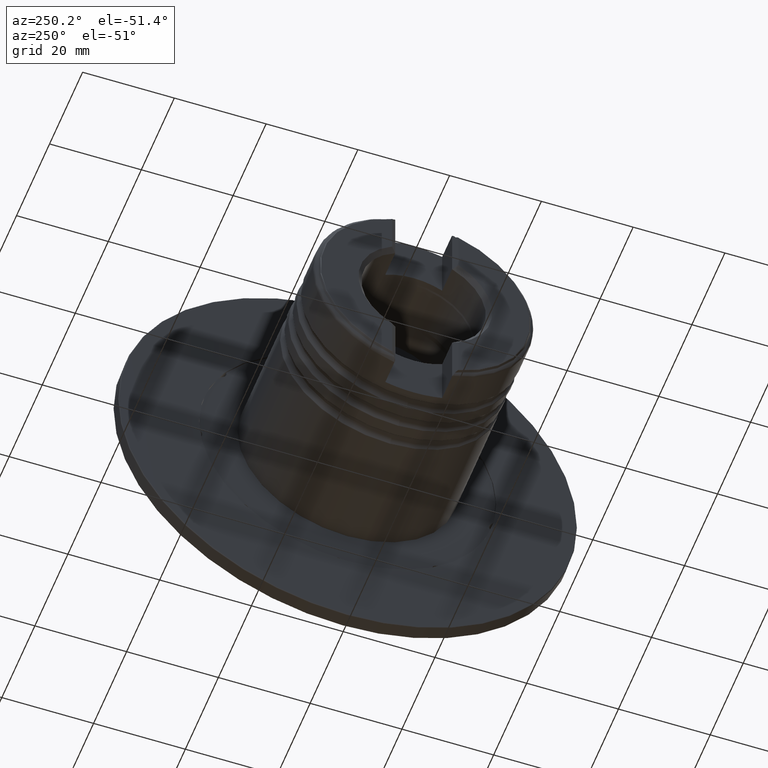
[diagram: clean part render]
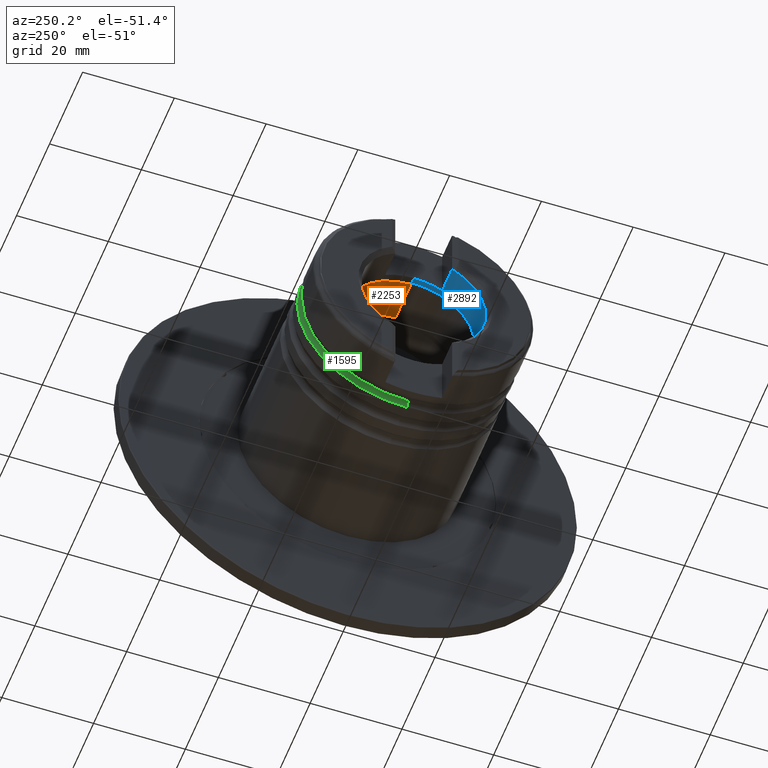
[diagram: same view with three faces highlighted in distinct colors, each labeled with its STEP entity id]
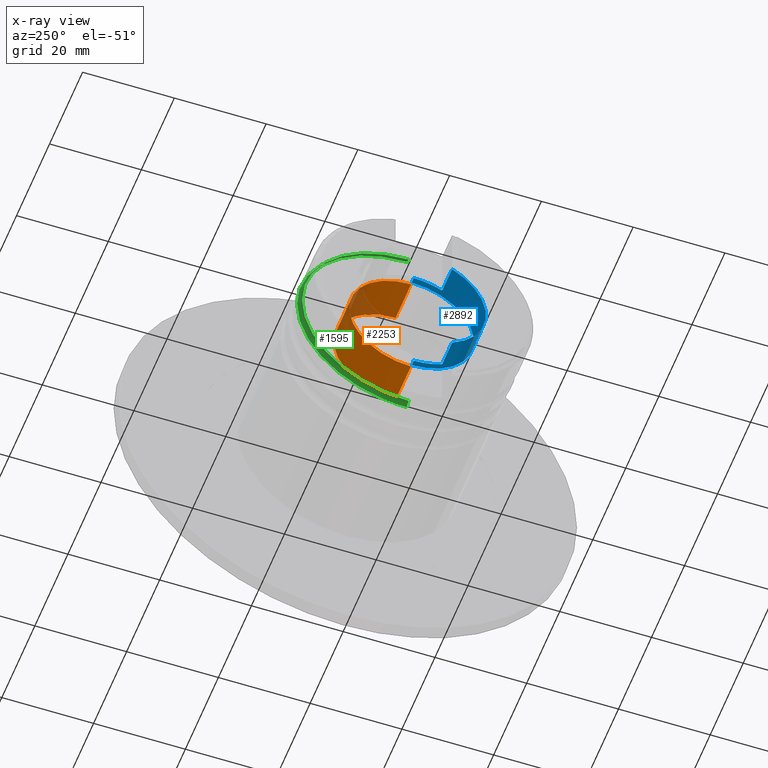
[diagram: x-ray of the same camera — body ghosted, the three highlighted faces saturated]
A machine part, auxiliary view with three faces highlighted in distinct colors.
The next image is the same camera in x-ray (body ghosted, the three faces saturated) — at least one of them is partly hidden behind the body in this view.
Their STEP definitions:

[orange] entity #2253 — the highlighted cylindrical surface (partial cylindrical patch) has radius 13.5 mm, axis along (1, 0, 0).
#35 = CARTESIAN_POINT ( 'NONE',  ( -41.07493929999999693, 0.0000000000000000000, 13.49999999999999467 ) ) ;
#298 = VECTOR ( 'NONE', #4443, 1000.000000000000000 ) ;
#550 = AXIS2_PLACEMENT_3D ( 'NONE', #3181, #6429, #4227 ) ;
#579 = CARTESIAN_POINT ( 'NONE',  ( -31.72493929999999196, 0.0000000000000000000, 0.0000000000000000000 ) ) ;
#620 = VERTEX_POINT ( 'NONE', #6434 ) ;
#679 = CARTESIAN_POINT ( 'NONE',  ( -31.72493929999999196, 0.0000000000000000000, -13.49999999999999645 ) ) ;
#1053 = VERTEX_POINT ( 'NONE', #679 ) ;
#1119 = DIRECTION ( 'NONE',  ( 1.000000000000000000, -0.0000000000000000000, -0.0000000000000000000 ) ) ;
#1154 = VECTOR ( 'NONE', #1445, 1000.000000000000000 ) ;
#1225 = ORIENTED_EDGE ( 'NONE', *, *, #3663, .F. ) ;
#1311 = CYLINDRICAL_SURFACE ( 'NONE', #550, 13.49999999999999467 ) ;
#1445 = DIRECTION ( 'NONE',  ( 1.000000000000000000, -0.0000000000000000000, -0.0000000000000000000 ) ) ;
#2023 = ORIENTED_EDGE ( 'NONE', *, *, #4335, .T. ) ;
#2253 = ADVANCED_FACE ( 'NONE', ( #3583 ), #1311, .F. ) ;
#2412 = LINE ( 'NONE', #5519, #298 ) ;
#2507 = DIRECTION ( 'NONE',  ( 0.0000000000000000000, 0.0000000000000000000, -1.000000000000000000 ) ) ;
#2825 = VERTEX_POINT ( 'NONE', #35 ) ;
#2917 = DIRECTION ( 'NONE',  ( 0.0000000000000000000, 0.0000000000000000000, -1.000000000000000000 ) ) ;
#2975 = DIRECTION ( 'NONE',  ( 1.000000000000000000, -0.0000000000000000000, -0.0000000000000000000 ) ) ;
#3085 = CARTESIAN_POINT ( 'NONE',  ( -31.72493929999999196, 1.653273178848926669E-15, 13.49999999999999822 ) ) ;
#3120 = EDGE_LOOP ( 'NONE', ( #4584, #1225, #7032, #2023 ) ) ;
#3146 = AXIS2_PLACEMENT_3D ( 'NONE', #579, #1119, #2917 ) ;
#3181 = CARTESIAN_POINT ( 'NONE',  ( 0.0000000000000000000, 0.0000000000000000000, 0.0000000000000000000 ) ) ;
#3583 = FACE_OUTER_BOUND ( 'NONE', #3120, .T. ) ;
#3663 = EDGE_CURVE ( 'NONE', #620, #2825, #5606, .T. ) ;
#3974 = VERTEX_POINT ( 'NONE', #3085 ) ;
#4049 = CARTESIAN_POINT ( 'NONE',  ( -41.07493929999999693, 0.0000000000000000000, 0.0000000000000000000 ) ) ;
#4227 = DIRECTION ( 'NONE',  ( 0.0000000000000000000, 0.0000000000000000000, -1.000000000000000000 ) ) ;
#4335 = EDGE_CURVE ( 'NONE', #1053, #3974, #6787, .T. ) ;
#4443 = DIRECTION ( 'NONE',  ( 1.000000000000000000, -0.0000000000000000000, -0.0000000000000000000 ) ) ;
#4584 = ORIENTED_EDGE ( 'NONE', *, *, #5385, .F. ) ;
#4624 = LINE ( 'NONE', #4747, #1154 ) ;
#4747 = CARTESIAN_POINT ( 'NONE',  ( 0.0000000000000000000, 0.0000000000000000000, -13.49999999999999467 ) ) ;
#5385 = EDGE_CURVE ( 'NONE', #2825, #3974, #2412, .T. ) ;
#5519 = CARTESIAN_POINT ( 'NONE',  ( 0.0000000000000000000, 1.653273178848926275E-15, 13.49999999999999467 ) ) ;
#5606 = CIRCLE ( 'NONE', #5798, 13.49999999999999467 ) ;
#5798 = AXIS2_PLACEMENT_3D ( 'NONE', #4049, #2975, #2507 ) ;
#6429 = DIRECTION ( 'NONE',  ( 1.000000000000000000, -0.0000000000000000000, -0.0000000000000000000 ) ) ;
#6434 = CARTESIAN_POINT ( 'NONE',  ( -41.07493929999999693, 1.657865604345728488E-15, -13.49999999999999467 ) ) ;
#6644 = EDGE_CURVE ( 'NONE', #620, #1053, #4624, .T. ) ;
#6787 = CIRCLE ( 'NONE', #3146, 13.49999999999999645 ) ;
#7032 = ORIENTED_EDGE ( 'NONE', *, *, #6644, .T. ) ;

[blue] entity #2892 — the highlighted cylindrical surface (partial cylindrical patch) has radius 13.575 mm, axis along (1, 0, 0).
#19 = VECTOR ( 'NONE', #2775, 1000.000000000000000 ) ;
#145 = DIRECTION ( 'NONE',  ( 1.000000000000000000, -0.0000000000000000000, -0.0000000000000000000 ) ) ;
#162 = DIRECTION ( 'NONE',  ( 1.000000000000000000, -0.0000000000000000000, -0.0000000000000000000 ) ) ;
#245 = AXIS2_PLACEMENT_3D ( 'NONE', #5379, #4910, #6521 ) ;
#475 = CIRCLE ( 'NONE', #2275, 13.57499999999999396 ) ;
#514 = VERTEX_POINT ( 'NONE', #2603 ) ;
#671 = CARTESIAN_POINT ( 'NONE',  ( 8.962737959213506608E-16, -6.200000000000000178, 12.07644918839970316 ) ) ;
#749 = CARTESIAN_POINT ( 'NONE',  ( -48.72493929999998841, 0.0000000000000000000, 0.0000000000000000000 ) ) ;
#765 = EDGE_CURVE ( 'NONE', #3738, #3760, #4987, .T. ) ;
#831 = CARTESIAN_POINT ( 'NONE',  ( -41.47493929999999551, 1.662458029842531096E-15, 13.57499999999999396 ) ) ;
#1011 = EDGE_CURVE ( 'NONE', #1572, #2674, #4884, .T. ) ;
#1012 = CARTESIAN_POINT ( 'NONE',  ( -42.72493929999999551, 0.0000000000000000000, -13.57499999999999396 ) ) ;
#1097 = CIRCLE ( 'NONE', #245, 13.57499999999999396 ) ;
#1121 = CARTESIAN_POINT ( 'NONE',  ( 0.0000000000000000000, 0.0000000000000000000, -13.57499999999999396 ) ) ;
#1204 = FACE_OUTER_BOUND ( 'NONE', #1584, .T. ) ;
#1237 = DIRECTION ( 'NONE',  ( 1.000000000000000000, -0.0000000000000000000, -0.0000000000000000000 ) ) ;
#1245 = CIRCLE ( 'NONE', #1307, 13.57499999999999396 ) ;
#1307 = AXIS2_PLACEMENT_3D ( 'NONE', #3531, #162, #3970 ) ;
#1572 = VERTEX_POINT ( 'NONE', #4818 ) ;
#1584 = EDGE_LOOP ( 'NONE', ( #6485, #1875, #2293, #3852, #6645, #5456, #2385, #2733 ) ) ;
#1832 = DIRECTION ( 'NONE',  ( 1.000000000000000000, -0.0000000000000000000, -0.0000000000000000000 ) ) ;
#1875 = ORIENTED_EDGE ( 'NONE', *, *, #1011, .T. ) ;
#1880 = DIRECTION ( 'NONE',  ( 1.000000000000000000, -0.0000000000000000000, -0.0000000000000000000 ) ) ;
#1896 = EDGE_CURVE ( 'NONE', #514, #5192, #3590, .T. ) ;
#2019 = CARTESIAN_POINT ( 'NONE',  ( -42.72493929999999551, 0.0000000000000000000, 0.0000000000000000000 ) ) ;
#2077 = CARTESIAN_POINT ( 'NONE',  ( -42.72493929999999551, -6.200000000000000178, 12.07644918839970316 ) ) ;
#2275 = AXIS2_PLACEMENT_3D ( 'NONE', #2019, #4778, #3831 ) ;
#2293 = ORIENTED_EDGE ( 'NONE', *, *, #7048, .T. ) ;
#2334 = CIRCLE ( 'NONE', #4576, 13.57499999999999396 ) ;
#2362 = CARTESIAN_POINT ( 'NONE',  ( -42.72493929999999551, -6.200000000000005507, -12.07644918839970316 ) ) ;
#2385 = ORIENTED_EDGE ( 'NONE', *, *, #5058, .F. ) ;
#2603 = CARTESIAN_POINT ( 'NONE',  ( -48.72493929999998841, -6.200000000000006395, 12.07644918839970138 ) ) ;
#2674 = VERTEX_POINT ( 'NONE', #831 ) ;
#2733 = ORIENTED_EDGE ( 'NONE', *, *, #1896, .T. ) ;
#2775 = DIRECTION ( 'NONE',  ( -1.000000000000000000, 0.0000000000000000000, 0.0000000000000000000 ) ) ;
#2892 = ADVANCED_FACE ( 'NONE', ( #1204 ), #5782, .F. ) ;
#3437 = CARTESIAN_POINT ( 'NONE',  ( 0.0000000000000000000, 1.662458029842531096E-15, 13.57499999999999396 ) ) ;
#3531 = CARTESIAN_POINT ( 'NONE',  ( -41.47493929999999551, 0.0000000000000000000, 0.0000000000000000000 ) ) ;
#3590 = LINE ( 'NONE', #671, #5209 ) ;
#3680 = VECTOR ( 'NONE', #1832, 1000.000000000000000 ) ;
#3738 = VERTEX_POINT ( 'NONE', #1012 ) ;
#3760 = VERTEX_POINT ( 'NONE', #3773 ) ;
#3773 = CARTESIAN_POINT ( 'NONE',  ( -41.47493929999999551, 0.0000000000000000000, -13.57499999999999396 ) ) ;
#3831 = DIRECTION ( 'NONE',  ( 0.0000000000000000000, 3.552713678800500535E-15, -1.000000000000000000 ) ) ;
#3852 = ORIENTED_EDGE ( 'NONE', *, *, #765, .F. ) ;
#3970 = DIRECTION ( 'NONE',  ( 0.0000000000000000000, 0.0000000000000000000, -1.000000000000000000 ) ) ;
#4010 = DIRECTION ( 'NONE',  ( 1.000000000000000000, -0.0000000000000000000, -0.0000000000000000000 ) ) ;
#4041 = DIRECTION ( 'NONE',  ( 0.0000000000000000000, 0.0000000000000000000, -1.000000000000000000 ) ) ;
#4119 = EDGE_CURVE ( 'NONE', #5192, #1572, #475, .T. ) ;
#4277 = CARTESIAN_POINT ( 'NONE',  ( -48.72493929999998841, -6.199999999999999289, -12.07644918839970138 ) ) ;
#4344 = VERTEX_POINT ( 'NONE', #2362 ) ;
#4487 = DIRECTION ( 'NONE',  ( 0.0000000000000000000, 0.0000000000000000000, -1.000000000000000000 ) ) ;
#4576 = AXIS2_PLACEMENT_3D ( 'NONE', #749, #1880, #4041 ) ;
#4778 = DIRECTION ( 'NONE',  ( -1.000000000000000000, 0.0000000000000000000, -0.0000000000000000000 ) ) ;
#4818 = CARTESIAN_POINT ( 'NONE',  ( -42.72493929999999551, 1.662458029842531096E-15, 13.57499999999999396 ) ) ;
#4884 = LINE ( 'NONE', #3437, #3680 ) ;
#4910 = DIRECTION ( 'NONE',  ( -1.000000000000000000, 0.0000000000000000000, -0.0000000000000000000 ) ) ;
#4987 = LINE ( 'NONE', #1121, #5072 ) ;
#5058 = EDGE_CURVE ( 'NONE', #514, #6214, #2334, .T. ) ;
#5072 = VECTOR ( 'NONE', #145, 1000.000000000000000 ) ;
#5192 = VERTEX_POINT ( 'NONE', #2077 ) ;
#5209 = VECTOR ( 'NONE', #1237, 1000.000000000000000 ) ;
#5264 = EDGE_CURVE ( 'NONE', #3738, #4344, #1097, .T. ) ;
#5379 = CARTESIAN_POINT ( 'NONE',  ( -42.72493929999999551, 0.0000000000000000000, 0.0000000000000000000 ) ) ;
#5456 = ORIENTED_EDGE ( 'NONE', *, *, #6293, .T. ) ;
#5474 = AXIS2_PLACEMENT_3D ( 'NONE', #6809, #4010, #4487 ) ;
#5782 = CYLINDRICAL_SURFACE ( 'NONE', #5474, 13.57499999999999396 ) ;
#6016 = CARTESIAN_POINT ( 'NONE',  ( 8.962737959213506608E-16, -6.200000000000000178, -12.07644918839970316 ) ) ;
#6214 = VERTEX_POINT ( 'NONE', #4277 ) ;
#6293 = EDGE_CURVE ( 'NONE', #4344, #6214, #6506, .T. ) ;
#6485 = ORIENTED_EDGE ( 'NONE', *, *, #4119, .T. ) ;
#6506 = LINE ( 'NONE', #6016, #19 ) ;
#6521 = DIRECTION ( 'NONE',  ( 0.0000000000000000000, 0.0000000000000000000, -1.000000000000000000 ) ) ;
#6645 = ORIENTED_EDGE ( 'NONE', *, *, #5264, .T. ) ;
#6809 = CARTESIAN_POINT ( 'NONE',  ( 0.0000000000000000000, 0.0000000000000000000, 0.0000000000000000000 ) ) ;
#7048 = EDGE_CURVE ( 'NONE', #2674, #3760, #1245, .T. ) ;

[green] entity #1595 — the highlighted toroidal blend (fillet) surface has major radius 24.75 mm and minor (blend) radius 1.5 mm.
#253 = EDGE_CURVE ( 'NONE', #2524, #2889, #6774, .T. ) ;
#276 = DIRECTION ( 'NONE',  ( -0.0000000000000000000, 1.000000000000000000, 1.224646799147353207E-16 ) ) ;
#392 = CARTESIAN_POINT ( 'NONE',  ( -39.72493930000000262, 0.0000000000000000000, 24.74999999999999645 ) ) ;
#835 = DIRECTION ( 'NONE',  ( 0.0000000000000000000, -1.224646799147352221E-16, 1.000000000000000000 ) ) ;
#876 = CARTESIAN_POINT ( 'NONE',  ( -39.72493930000000262, 0.0000000000000000000, 23.25000000000000000 ) ) ;
#1196 = CIRCLE ( 'NONE', #5564, 23.25000000000000000 ) ;
#1203 = DIRECTION ( 'NONE',  ( 0.0000000000000000000, 0.0000000000000000000, 1.000000000000000000 ) ) ;
#1569 = DIRECTION ( 'NONE',  ( -1.000000000000000000, -0.0000000000000000000, -0.0000000000000000000 ) ) ;
#1595 = ADVANCED_FACE ( 'NONE', ( #5643 ), #5214, .F. ) ;
#1700 = CARTESIAN_POINT ( 'NONE',  ( -39.72493930000000262, 0.0000000000000000000, 0.0000000000000000000 ) ) ;
#2099 = AXIS2_PLACEMENT_3D ( 'NONE', #4286, #1569, #1203 ) ;
#2315 = DIRECTION ( 'NONE',  ( -1.000000000000000000, -0.0000000000000000000, -0.0000000000000000000 ) ) ;
#2524 = VERTEX_POINT ( 'NONE', #3466 ) ;
#2736 = VERTEX_POINT ( 'NONE', #5968 ) ;
#2889 = VERTEX_POINT ( 'NONE', #5186 ) ;
#2948 = CIRCLE ( 'NONE', #4561, 23.91176470588235148 ) ;
#3254 = DIRECTION ( 'NONE',  ( 0.0000000000000000000, -1.000000000000000000, 0.0000000000000000000 ) ) ;
#3421 = ORIENTED_EDGE ( 'NONE', *, *, #6165, .T. ) ;
#3466 = CARTESIAN_POINT ( 'NONE',  ( -39.72493930000000262, 2.847303808017596533E-15, -23.25000000000000000 ) ) ;
#3616 = CARTESIAN_POINT ( 'NONE',  ( -38.48100940177603491, 0.0000000000000000000, 0.0000000000000000000 ) ) ;
#3830 = EDGE_CURVE ( 'NONE', #6093, #2524, #1196, .T. ) ;
#3903 = EDGE_CURVE ( 'NONE', #2736, #2889, #2948, .T. ) ;
#3945 = CIRCLE ( 'NONE', #4268, 1.499999999999997780 ) ;
#4112 = CARTESIAN_POINT ( 'NONE',  ( -39.72493930000000262, 3.031000827889698861E-15, -24.74999999999999645 ) ) ;
#4246 = ORIENTED_EDGE ( 'NONE', *, *, #3903, .T. ) ;
#4268 = AXIS2_PLACEMENT_3D ( 'NONE', #392, #3254, #4883 ) ;
#4286 = CARTESIAN_POINT ( 'NONE',  ( -39.72493930000000262, 0.0000000000000000000, 0.0000000000000000000 ) ) ;
#4561 = AXIS2_PLACEMENT_3D ( 'NONE', #3616, #5277, #5641 ) ;
#4626 = ORIENTED_EDGE ( 'NONE', *, *, #253, .F. ) ;
#4883 = DIRECTION ( 'NONE',  ( 0.0000000000000000000, 0.0000000000000000000, -1.000000000000000000 ) ) ;
#5186 = CARTESIAN_POINT ( 'NONE',  ( -38.48100940177603491, 2.928346610902347781E-15, -23.91176470588235503 ) ) ;
#5214 = TOROIDAL_SURFACE ( 'NONE', #2099, 24.74999999999999645, 1.499999999999996891 ) ;
#5277 = DIRECTION ( 'NONE',  ( -1.000000000000000000, -0.0000000000000000000, -0.0000000000000000000 ) ) ;
#5564 = AXIS2_PLACEMENT_3D ( 'NONE', #1700, #2315, #7154 ) ;
#5571 = AXIS2_PLACEMENT_3D ( 'NONE', #4112, #276, #835 ) ;
#5641 = DIRECTION ( 'NONE',  ( 0.0000000000000000000, 0.0000000000000000000, 1.000000000000000000 ) ) ;
#5643 = FACE_OUTER_BOUND ( 'NONE', #6064, .T. ) ;
#5968 = CARTESIAN_POINT ( 'NONE',  ( -38.48100940177603491, 0.0000000000000000000, 23.91176470588235503 ) ) ;
#6064 = EDGE_LOOP ( 'NONE', ( #7157, #3421, #4246, #4626 ) ) ;
#6093 = VERTEX_POINT ( 'NONE', #876 ) ;
#6165 = EDGE_CURVE ( 'NONE', #6093, #2736, #3945, .T. ) ;
#6774 = CIRCLE ( 'NONE', #5571, 1.499999999999997780 ) ;
#7154 = DIRECTION ( 'NONE',  ( 0.0000000000000000000, 0.0000000000000000000, 1.000000000000000000 ) ) ;
#7157 = ORIENTED_EDGE ( 'NONE', *, *, #3830, .F. ) ;